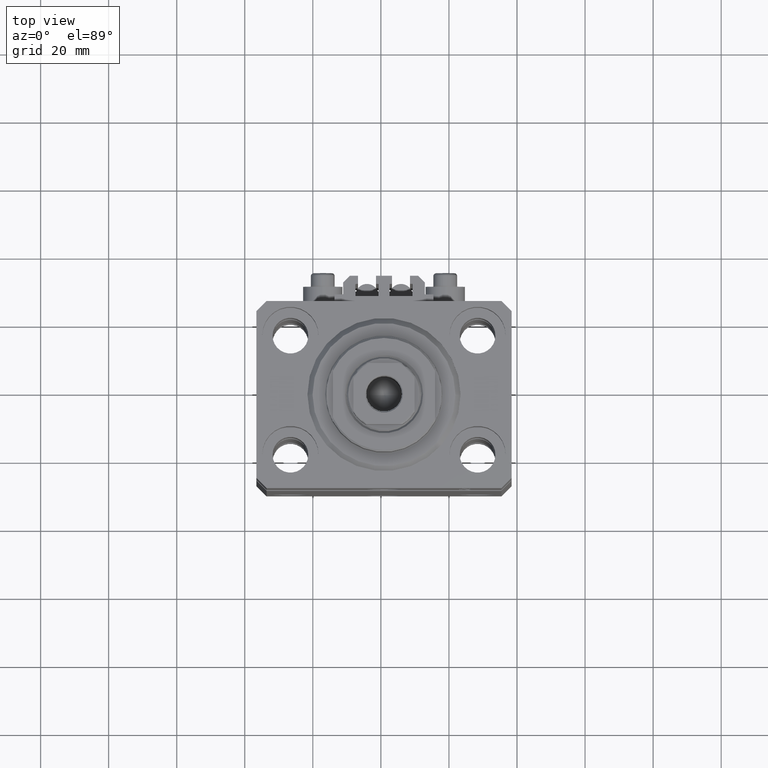
[diagram: clean part render]
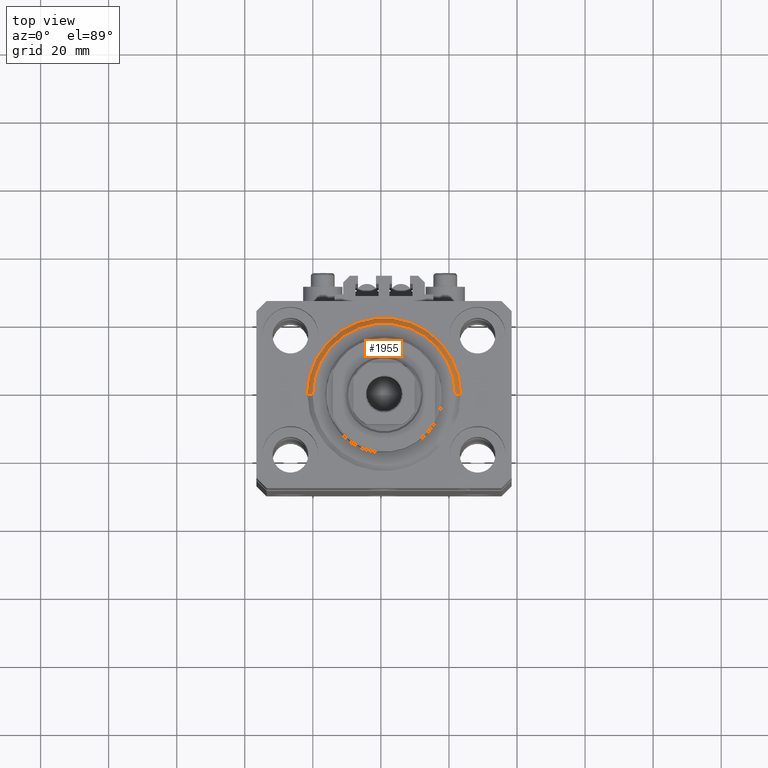
[diagram: same view with one face highlighted and labeled with its STEP entity id]
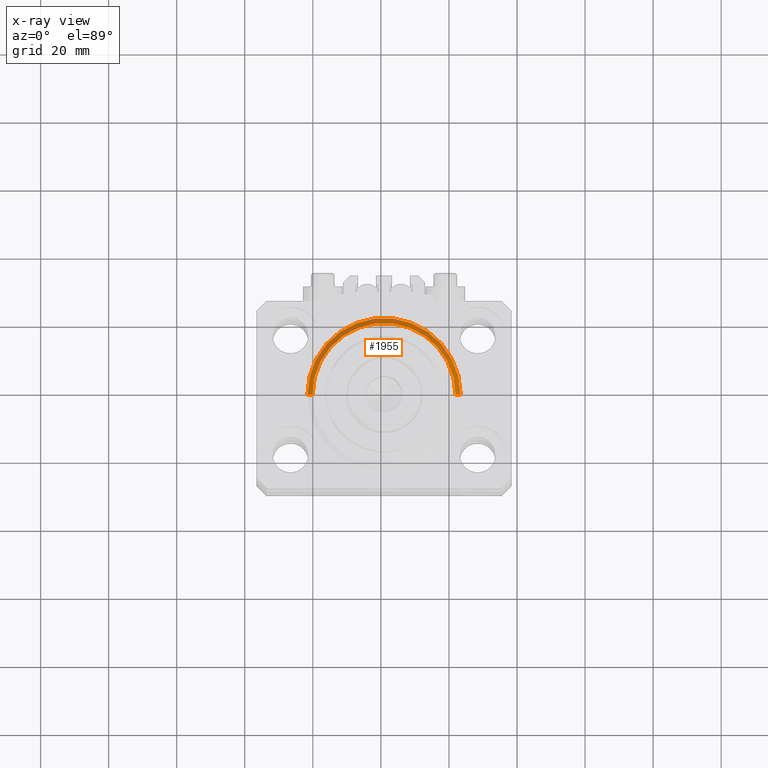
[diagram: x-ray of the same camera — body ghosted, the highlighted face saturated]
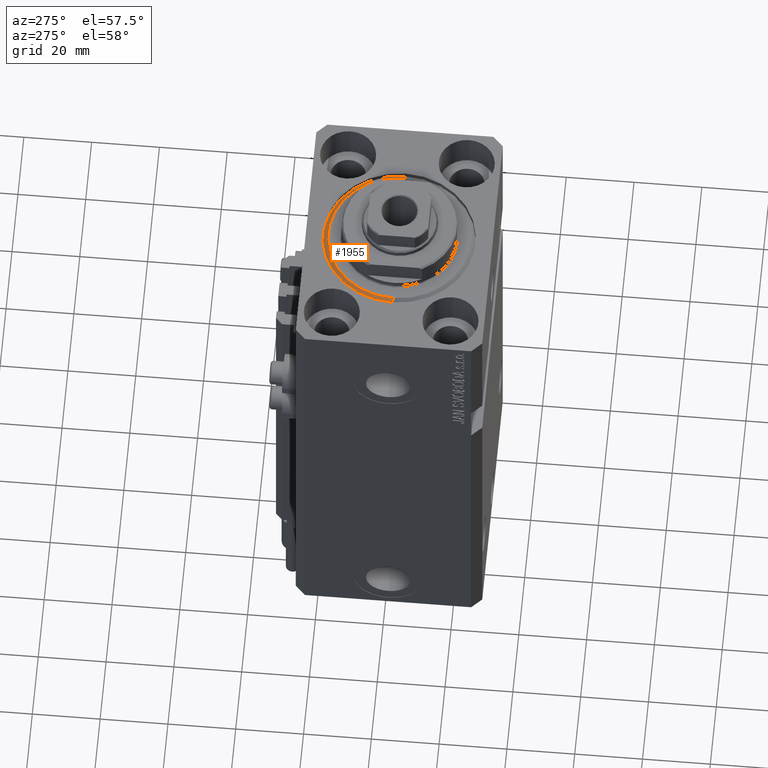
[diagram: same view with one face highlighted and labeled with its STEP entity id]
A machine part, top view. The second image highlights one B-rep face of the part: STEP entity #1955.
The next image is the same camera in x-ray: the body ghosted, the highlighted face saturated — about 0% of this face is hidden behind the body in this view.
A second angle (auxiliary view) of the same face is appended — the face is thin or edge-on in the first view.
In plain terms, the highlighted conical surface has half-angle 45 deg.
Its self-contained STEP definition (entity closure, byte-faithful):
#1362 = CIRCLE ( 'NONE', #36388, 20.99999999999998934 ) ;
#1876 = EDGE_CURVE ( 'NONE', #36003, #17513, #31842, .T. ) ;
#1955 = ADVANCED_FACE ( 'NONE', ( #32321 ), #13519, .T. ) ;
#3928 = DIRECTION ( 'NONE',  ( -0.7071067811865500152, 8.659560562354963673E-17, 0.7071067811865451302 ) ) ;
#4106 = VERTEX_POINT ( 'NONE', #8837 ) ;
#6420 = CARTESIAN_POINT ( 'NONE',  ( 0.000000000000000000, 0.000000000000000000, 0.000000000000000000 ) ) ;
#6506 = DIRECTION ( 'NONE',  ( 1.000000000000000000, 0.000000000000000000, 0.000000000000000000 ) ) ;
#8837 = CARTESIAN_POINT ( 'NONE',  ( -22.50000000000000355, 0.000000000000000000, 1.500000000000001332 ) ) ;
#9433 = CARTESIAN_POINT ( 'NONE',  ( 22.50000000000000355, 0.000000000000000000, 1.500000000000001332 ) ) ;
#13519 = CONICAL_SURFACE ( 'NONE', #39962, 22.50000000000000355, 0.7853981633974517207 ) ;
#15171 = EDGE_LOOP ( 'NONE', ( #41103, #30293, #20791, #43123 ) ) ;
#16422 = AXIS2_PLACEMENT_3D ( 'NONE', #18187, #17240, #6506 ) ;
#17240 = DIRECTION ( 'NONE',  ( -0.000000000000000000, -0.000000000000000000, 1.000000000000000000 ) ) ;
#17295 = CARTESIAN_POINT ( 'NONE',  ( -20.99999999999998934, 2.663606788145492628E-15, 0.000000000000000000 ) ) ;
#17513 = VERTEX_POINT ( 'NONE', #41982 ) ;
#18154 = CARTESIAN_POINT ( 'NONE',  ( 0.000000000000000000, 0.000000000000000000, 1.500000000000001332 ) ) ;
#18187 = CARTESIAN_POINT ( 'NONE',  ( 0.000000000000000000, 0.000000000000000000, 1.500000000000001332 ) ) ;
#20791 = ORIENTED_EDGE ( 'NONE', *, *, #39434, .F. ) ;
#21277 = DIRECTION ( 'NONE',  ( 1.000000000000000000, 0.000000000000000000, 0.000000000000000000 ) ) ;
#22450 = LINE ( 'NONE', #30242, #27280 ) ;
#23419 = CARTESIAN_POINT ( 'NONE',  ( 20.99999999999998934, 0.000000000000000000, 0.000000000000000000 ) ) ;
#25417 = DIRECTION ( 'NONE',  ( -0.000000000000000000, -0.000000000000000000, -1.000000000000000000 ) ) ;
#27280 = VECTOR ( 'NONE', #3928, 1000.000000000000114 ) ;
#30242 = CARTESIAN_POINT ( 'NONE',  ( -22.50000000000000355, 2.755455298081545172E-15, 1.500000000000001332 ) ) ;
#30293 = ORIENTED_EDGE ( 'NONE', *, *, #38154, .T. ) ;
#31842 = LINE ( 'NONE', #9433, #43846 ) ;
#32321 = FACE_OUTER_BOUND ( 'NONE', #15171, .T. ) ;
#33029 = DIRECTION ( 'NONE',  ( 1.000000000000000000, 0.000000000000000000, 0.000000000000000000 ) ) ;
#35243 = DIRECTION ( 'NONE',  ( 0.7071067811865500152, 0.000000000000000000, 0.7071067811865451302 ) ) ;
#36003 = VERTEX_POINT ( 'NONE', #23419 ) ;
#36388 = AXIS2_PLACEMENT_3D ( 'NONE', #6420, #25417, #21277 ) ;
#37432 = CIRCLE ( 'NONE', #16422, 22.50000000000000355 ) ;
#38154 = EDGE_CURVE ( 'NONE', #39225, #4106, #22450, .T. ) ;
#39225 = VERTEX_POINT ( 'NONE', #17295 ) ;
#39434 = EDGE_CURVE ( 'NONE', #17513, #4106, #37432, .T. ) ;
#39962 = AXIS2_PLACEMENT_3D ( 'NONE', #18154, #47416, #33029 ) ;
#41103 = ORIENTED_EDGE ( 'NONE', *, *, #47798, .F. ) ;
#41982 = CARTESIAN_POINT ( 'NONE',  ( 22.50000000000000355, 2.755455298081545172E-15, 1.500000000000001332 ) ) ;
#43123 = ORIENTED_EDGE ( 'NONE', *, *, #1876, .F. ) ;
#43846 = VECTOR ( 'NONE', #35243, 1000.000000000000114 ) ;
#47416 = DIRECTION ( 'NONE',  ( -0.000000000000000000, -0.000000000000000000, 1.000000000000000000 ) ) ;
#47798 = EDGE_CURVE ( 'NONE', #39225, #36003, #1362, .T. ) ;